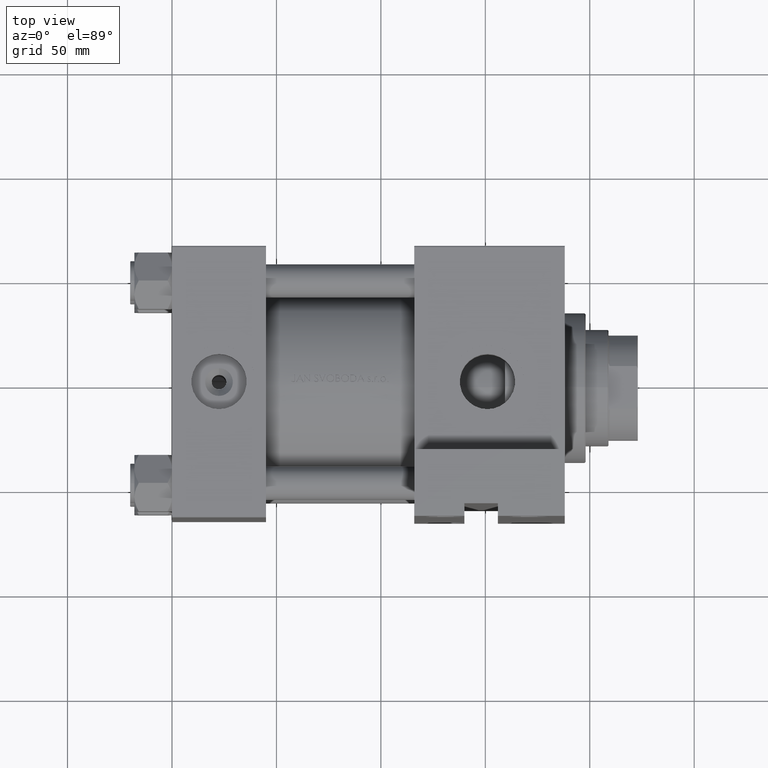
[diagram: clean part render]
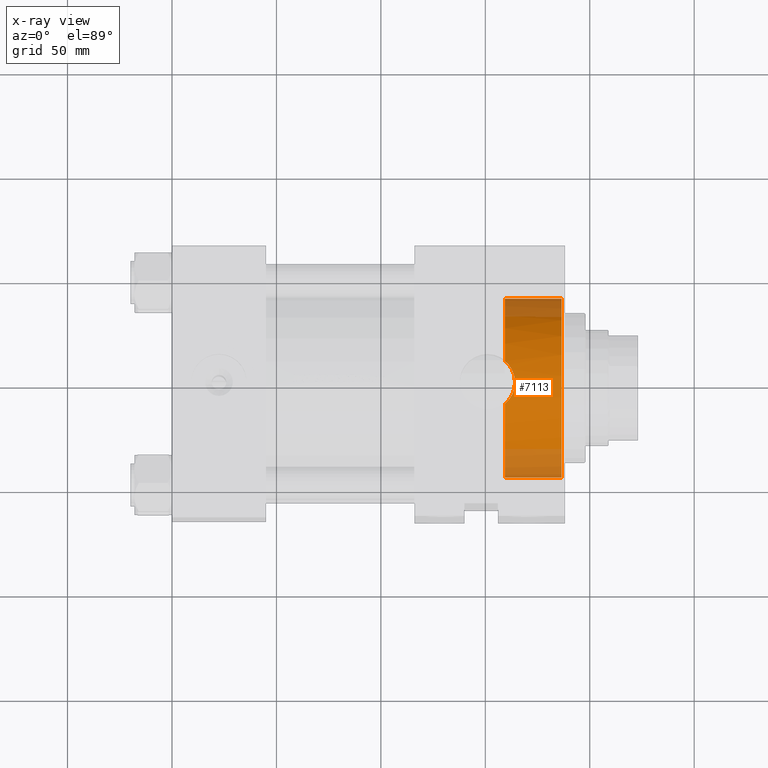
[diagram: x-ray — body ghosted, one internal face saturated and labeled with its STEP entity id]
A machine part, top view, then the same camera in x-ray: the body is ghosted and one INTERNAL B-rep face — a face not visible from any outside direction — is saturated and labeled: STEP entity #7113.
In plain terms, the highlighted cylindrical surface (partial cylindrical patch) has radius 42.75 mm, axis along (1, 0, 0).
Its self-contained STEP definition (entity closure, byte-faithful):
#260 = VERTEX_POINT ( 'NONE', #6829 ) ;
#1075 = CARTESIAN_POINT ( 'NONE',  ( 159.3000000000000114, 5.235365066354935472E-15, 40.75000000000001421 ) ) ;
#1813 = CARTESIAN_POINT ( 'NONE',  ( 159.3000000000000114, -40.94539299953817846, 10.28972302834242036 ) ) ;
#2444 = CARTESIAN_POINT ( 'NONE',  ( 159.3000000000000114, -40.94539299953817846, 10.28972302834242036 ) ) ;
#2697 = CARTESIAN_POINT ( 'NONE',  ( 162.7184683993392014, -42.55149001076219406, -6.139016384767053580 ) ) ;
#3154 = EDGE_CURVE ( 'NONE', #48644, #27681, #24243, .T. ) ;
#4160 = CYLINDRICAL_SURFACE ( 'NONE', #36957, 42.75000000000000000 ) ;
#4265 = VECTOR ( 'NONE', #13741, 1000.000000000000000 ) ;
#4433 = DIRECTION ( 'NONE',  ( 1.000000000000000000, 0.000000000000000000, 0.000000000000000000 ) ) ;
#4654 = CARTESIAN_POINT ( 'NONE',  ( 159.3000000000000114, 0.000000000000000000, -1.999999999999988010 ) ) ;
#5743 = CARTESIAN_POINT ( 'NONE',  ( 163.7702468218143395, -42.40340305083812922, 3.453916471727770610 ) ) ;
#5785 = EDGE_CURVE ( 'NONE', #48644, #37581, #22378, .T. ) ;
#5999 = CARTESIAN_POINT ( 'NONE',  ( 160.0451116199868977, -41.13251322471781890, 9.653706096103306322 ) ) ;
#6240 = CARTESIAN_POINT ( 'NONE',  ( 161.9555694806218185, -42.40771477465504802, -7.415583664628885963 ) ) ;
#6498 = CARTESIAN_POINT ( 'NONE',  ( 162.4814040147512344, -42.50692353574452653, -6.572118804609204723 ) ) ;
#6829 = CARTESIAN_POINT ( 'NONE',  ( 159.3000000000000114, 0.000000000000000000, -44.74999999999999289 ) ) ;
#7113 = ADVANCED_FACE ( 'NONE', ( #35954 ), #4160, .F. ) ;
#9546 = CARTESIAN_POINT ( 'NONE',  ( 163.1203523564805380, -42.12424106286739089, 5.301601292153198308 ) ) ;
#10048 = CARTESIAN_POINT ( 'NONE',  ( 164.2185786442818198, -42.67795519994514564, 0.5294028959724730310 ) ) ;
#10285 = CARTESIAN_POINT ( 'NONE',  ( 163.9909884326174563, -42.51536739096798811, 2.498592089023935259 ) ) ;
#11101 = AXIS2_PLACEMENT_3D ( 'NONE', #27172, #20784, #32635 ) ;
#11999 = DIRECTION ( 'NONE',  ( 0.000000000000000000, 0.000000000000000000, -1.000000000000000000 ) ) ;
#13274 = DIRECTION ( 'NONE',  ( 1.000000000000000000, 0.000000000000000000, 0.000000000000000000 ) ) ;
#13655 = B_SPLINE_CURVE_WITH_KNOTS ( 'NONE', 3,
 ( #37048, #48432, #17602, #14311, #6240, #6498, #2697, #36804, #48927, #28965, #14062, #10048, #33257, #25428, #10285, #5743, #40364, #41101, #9546, #29715, #40615, #21159, #21905, #5999, #32750, #2444 ),
 .UNSPECIFIED., .F., .F.,
 ( 4, 2, 2, 2, 2, 2, 2, 2, 2, 2, 2, 2, 4 ),
 ( 1.734723475976807094E-18, 0.002955178967603948933, 0.004432768451405949203, 0.005910357935207949907, 0.008865536902811915754, 0.01182071587041588420, 0.01329830535421786843, 0.01477589483801985265, 0.01625348432182183861, 0.01773107380562381763, 0.02068625277322782424, 0.02216384225702982408, 0.02364143174083182392 ),
 .UNSPECIFIED. ) ;
#13741 = DIRECTION ( 'NONE',  ( 1.000000000000000000, -0.000000000000000000, -0.000000000000000000 ) ) ;
#14062 = CARTESIAN_POINT ( 'NONE',  ( 164.2226893013867937, -42.74844784968890821, -0.9484950417890757324 ) ) ;
#14311 = CARTESIAN_POINT ( 'NONE',  ( 161.6716994073646845, -42.35401485214408268, -7.818143170495472916 ) ) ;
#16531 = ORIENTED_EDGE ( 'NONE', *, *, #45298, .T. ) ;
#16640 = VECTOR ( 'NONE', #38912, 1000.000000000000000 ) ;
#17602 = CARTESIAN_POINT ( 'NONE',  ( 160.7595685254325701, -42.18495480839492018, -8.971050423413839070 ) ) ;
#19609 = ORIENTED_EDGE ( 'NONE', *, *, #43691, .F. ) ;
#20784 = DIRECTION ( 'NONE',  ( 1.000000000000000000, 0.000000000000000000, 0.000000000000000000 ) ) ;
#21086 = LINE ( 'NONE', #40788, #4265 ) ;
#21159 = CARTESIAN_POINT ( 'NONE',  ( 161.0590284505212537, -41.41894000393354958, 8.591854161632520359 ) ) ;
#21846 = CIRCLE ( 'NONE', #26674, 42.75000000000000000 ) ;
#21905 = CARTESIAN_POINT ( 'NONE',  ( 160.7343689868388026, -41.32323058016928030, 8.958244584517357723 ) ) ;
#22378 = CIRCLE ( 'NONE', #11101, 42.75000000000000000 ) ;
#23759 = CARTESIAN_POINT ( 'NONE',  ( 159.3000000000000114, 5.235365066354935472E-15, 40.75000000000001421 ) ) ;
#23870 = DIRECTION ( 'NONE',  ( 0.000000000000000000, 0.000000000000000000, 1.000000000000000000 ) ) ;
#24042 = CARTESIAN_POINT ( 'NONE',  ( 159.3000000000000114, -41.93856211308835213, -10.28972302834241503 ) ) ;
#24243 = LINE ( 'NONE', #23759, #16640 ) ;
#24692 = CARTESIAN_POINT ( 'NONE',  ( 186.5000000000001137, 5.235365066354935472E-15, 40.75000000000001421 ) ) ;
#25428 = CARTESIAN_POINT ( 'NONE',  ( 164.0753579806571452, -42.56414551538395585, 2.012750551301220270 ) ) ;
#25618 = DIRECTION ( 'NONE',  ( 0.000000000000000000, 0.000000000000000000, -1.000000000000000000 ) ) ;
#25631 = ORIENTED_EDGE ( 'NONE', *, *, #43298, .T. ) ;
#26674 = AXIS2_PLACEMENT_3D ( 'NONE', #28667, #13274, #25618 ) ;
#27172 = CARTESIAN_POINT ( 'NONE',  ( 159.3000000000000114, 0.000000000000000000, -1.999999999999988010 ) ) ;
#27403 = CARTESIAN_POINT ( 'NONE',  ( 186.5000000000001137, 0.000000000000000000, -1.999999999999988010 ) ) ;
#27681 = VERTEX_POINT ( 'NONE', #24692 ) ;
#28667 = CARTESIAN_POINT ( 'NONE',  ( 159.3000000000000114, 0.000000000000000000, -1.999999999999988010 ) ) ;
#28965 = CARTESIAN_POINT ( 'NONE',  ( 164.1164201470193973, -42.76104891401912056, -1.930110966431391573 ) ) ;
#29715 = CARTESIAN_POINT ( 'NONE',  ( 162.4797392186874276, -41.87964628428685643, 6.629483953954760977 ) ) ;
#30174 = EDGE_CURVE ( 'NONE', #260, #46145, #21086, .T. ) ;
#32554 = VERTEX_POINT ( 'NONE', #24042 ) ;
#32635 = DIRECTION ( 'NONE',  ( 0.000000000000000000, 0.000000000000000000, -1.000000000000000000 ) ) ;
#32750 = CARTESIAN_POINT ( 'NONE',  ( 159.6819780581452903, -41.03787343702517632, 9.981608040808385596 ) ) ;
#33218 = ORIENTED_EDGE ( 'NONE', *, *, #5785, .F. ) ;
#33257 = CARTESIAN_POINT ( 'NONE',  ( 164.1896888196765190, -42.64580879571354188, 1.023845664247609477 ) ) ;
#35210 = DIRECTION ( 'NONE',  ( 1.000000000000000000, -0.000000000000000000, -0.000000000000000000 ) ) ;
#35954 = FACE_OUTER_BOUND ( 'NONE', #38222, .T. ) ;
#36804 = CARTESIAN_POINT ( 'NONE',  ( 163.3537780419140688, -42.66695895671561800, -4.808228705680138049 ) ) ;
#36957 = AXIS2_PLACEMENT_3D ( 'NONE', #4654, #35210, #11999 ) ;
#37048 = CARTESIAN_POINT ( 'NONE',  ( 159.3000000000000114, -41.93856211308835213, -10.28972302834241503 ) ) ;
#37581 = VERTEX_POINT ( 'NONE', #1813 ) ;
#38222 = EDGE_LOOP ( 'NONE', ( #33218, #43746, #16531, #43338, #19609, #25631 ) ) ;
#38912 = DIRECTION ( 'NONE',  ( 1.000000000000000000, -0.000000000000000000, -0.000000000000000000 ) ) ;
#40364 = CARTESIAN_POINT ( 'NONE',  ( 163.6338670964544804, -42.34021314828611082, 3.923396703049899514 ) ) ;
#40615 = CARTESIAN_POINT ( 'NONE',  ( 161.9635263521287243, -41.69966300305806328, 7.450633203883366029 ) ) ;
#40788 = CARTESIAN_POINT ( 'NONE',  ( 159.3000000000000114, 0.000000000000000000, -44.74999999999999289 ) ) ;
#41101 = CARTESIAN_POINT ( 'NONE',  ( 163.3094022243083714, -42.20081720947441539, 4.846262103990099490 ) ) ;
#41895 = CARTESIAN_POINT ( 'NONE',  ( 186.5000000000001137, 0.000000000000000000, -44.74999999999999289 ) ) ;
#43298 = EDGE_CURVE ( 'NONE', #32554, #37581, #13655, .T. ) ;
#43338 = ORIENTED_EDGE ( 'NONE', *, *, #30174, .F. ) ;
#43691 = EDGE_CURVE ( 'NONE', #32554, #260, #21846, .T. ) ;
#43746 = ORIENTED_EDGE ( 'NONE', *, *, #3154, .T. ) ;
#45298 = EDGE_CURVE ( 'NONE', #27681, #46145, #45330, .T. ) ;
#45330 = CIRCLE ( 'NONE', #47755, 42.75000000000000000 ) ;
#46145 = VERTEX_POINT ( 'NONE', #41895 ) ;
#47755 = AXIS2_PLACEMENT_3D ( 'NONE', #27403, #4433, #23870 ) ;
#48432 = CARTESIAN_POINT ( 'NONE',  ( 160.0715935333334130, -42.06158600747321685, -9.667332483035478319 ) ) ;
#48644 = VERTEX_POINT ( 'NONE', #1075 ) ;
#48927 = CARTESIAN_POINT ( 'NONE',  ( 163.6775936943455179, -42.71981532748542065, -3.878714211819132451 ) ) ;